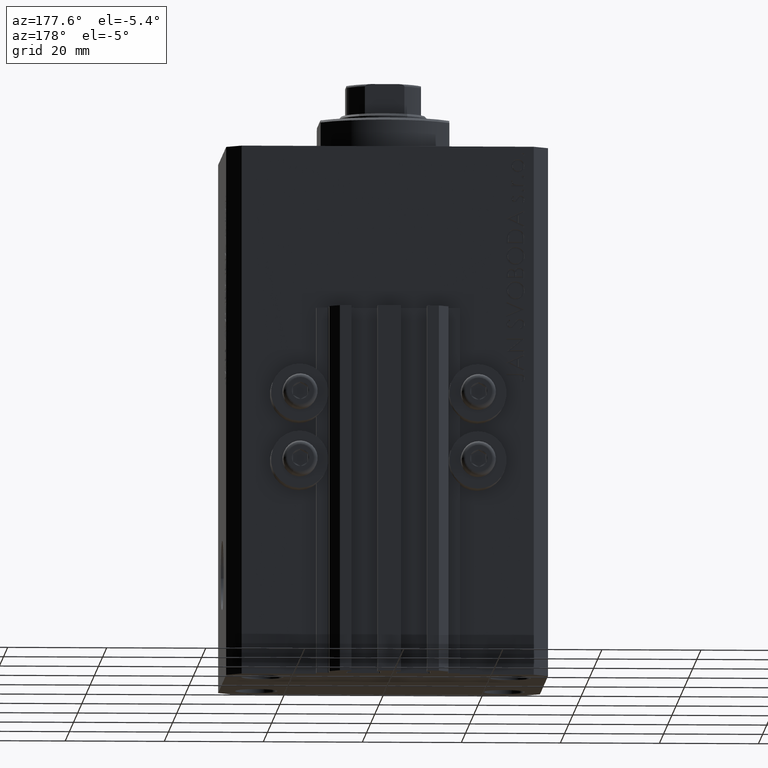
[diagram: clean part render]
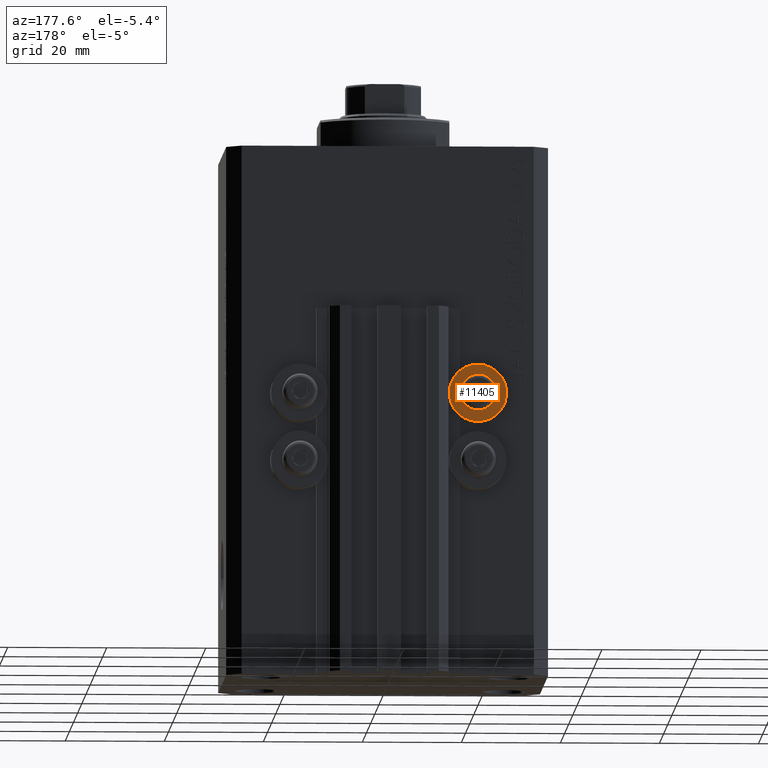
[diagram: same view with one face highlighted and labeled with its STEP entity id]
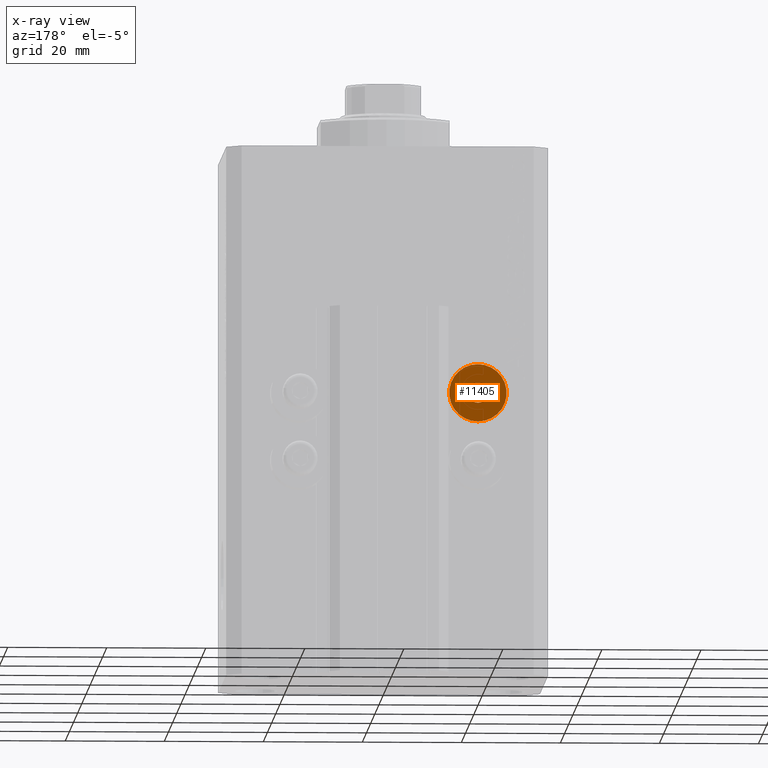
[diagram: x-ray of the same camera — body ghosted, the highlighted face saturated]
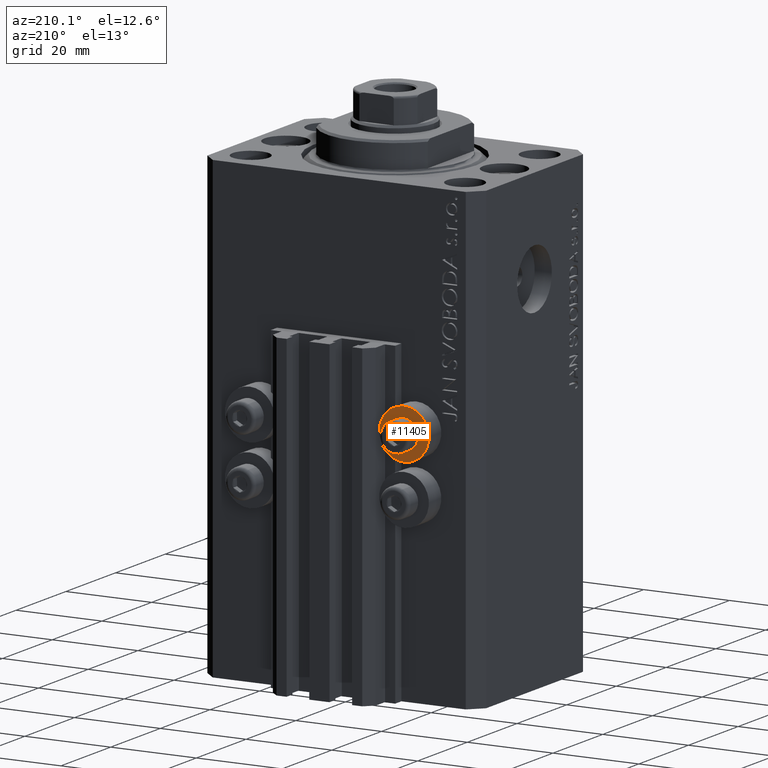
[diagram: same view with one face highlighted and labeled with its STEP entity id]
A machine part, auxiliary view. The second image highlights one B-rep face of the part: STEP entity #11405.
The next image is the same camera in x-ray: the body ghosted, the highlighted face saturated — about 0% of this face is hidden behind the body in this view.
A second angle (auxiliary view) of the same face is appended — the face is thin or edge-on in the first view.
In plain terms, the highlighted planar face has unit normal (0, -1, 0).
Its self-contained STEP definition (entity closure, byte-faithful):
#1298 = FACE_OUTER_BOUND ( 'NONE', #46923, .T. ) ;
#4878 = DIRECTION ( 'NONE',  ( 0.000000000000000000, -1.000000000000000000, 0.000000000000000000 ) ) ;
#9739 = VERTEX_POINT ( 'NONE', #35247 ) ;
#10584 = CARTESIAN_POINT ( 'NONE',  ( -18.00000000000000355, 27.49999999996051514, -44.60000000000000142 ) ) ;
#11405 = ADVANCED_FACE ( 'NONE', ( #33522, #1298 ), #29713, .F. ) ;
#16361 = CIRCLE ( 'NONE', #43069, 5.799999999999999822 ) ;
#16480 = DIRECTION ( 'NONE',  ( 0.000000000000000000, 1.000000000000000000, 0.000000000000000000 ) ) ;
#17511 = CARTESIAN_POINT ( 'NONE',  ( -18.00000000000000355, 27.49999999996051514, -50.39999999999999858 ) ) ;
#18618 = CARTESIAN_POINT ( 'NONE',  ( -18.00000000000000355, 27.49999999996051514, -56.20000000000000284 ) ) ;
#20084 = AXIS2_PLACEMENT_3D ( 'NONE', #27009, #16480, #23889 ) ;
#22117 = AXIS2_PLACEMENT_3D ( 'NONE', #30132, #30360, #26076 ) ;
#22777 = CARTESIAN_POINT ( 'NONE',  ( -12.20000000000000284, 27.49999999996051514, -50.39999999999999858 ) ) ;
#23160 = CIRCLE ( 'NONE', #20084, 2.000000000000001776 ) ;
#23166 = EDGE_CURVE ( 'NONE', #9739, #29542, #23160, .T. ) ;
#23879 = ORIENTED_EDGE ( 'NONE', *, *, #44279, .T. ) ;
#23889 = DIRECTION ( 'NONE',  ( 0.000000000000000000, 0.000000000000000000, 1.000000000000000000 ) ) ;
#24204 = DIRECTION ( 'NONE',  ( 0.000000000000000000, 1.000000000000000000, 0.000000000000000000 ) ) ;
#24516 = ORIENTED_EDGE ( 'NONE', *, *, #29731, .T. ) ;
#25891 = DIRECTION ( 'NONE',  ( 0.000000000000000000, -0.000000000000000000, -1.000000000000000000 ) ) ;
#26076 = DIRECTION ( 'NONE',  ( 0.000000000000000000, 0.000000000000000000, 1.000000000000000000 ) ) ;
#26672 = DIRECTION ( 'NONE',  ( -0.000000000000000000, 1.000000000000000000, -0.000000000000000000 ) ) ;
#27009 = CARTESIAN_POINT ( 'NONE',  ( -18.00000000000000355, 27.49999999996051514, -50.39999999999999858 ) ) ;
#29542 = VERTEX_POINT ( 'NONE', #38315 ) ;
#29693 = AXIS2_PLACEMENT_3D ( 'NONE', #17511, #24204, #46643 ) ;
#29713 = PLANE ( 'NONE',  #46443 ) ;
#29731 = EDGE_CURVE ( 'NONE', #42603, #41804, #16361, .T. ) ;
#30132 = CARTESIAN_POINT ( 'NONE',  ( -18.00000000000000355, 27.49999999996051514, -50.39999999999999858 ) ) ;
#30360 = DIRECTION ( 'NONE',  ( -0.000000000000000000, 1.000000000000000000, -0.000000000000000000 ) ) ;
#31278 = CIRCLE ( 'NONE', #22117, 5.799999999999999822 ) ;
#33522 = FACE_BOUND ( 'NONE', #41702, .T. ) ;
#35247 = CARTESIAN_POINT ( 'NONE',  ( -18.00000000000000355, 27.49999999996051514, -48.39999999999999858 ) ) ;
#36736 = ORIENTED_EDGE ( 'NONE', *, *, #42487, .F. ) ;
#38315 = CARTESIAN_POINT ( 'NONE',  ( -18.00000000000000355, 27.49999999996051514, -52.40000000000000568 ) ) ;
#38347 = DIRECTION ( 'NONE',  ( 0.000000000000000000, 0.000000000000000000, 1.000000000000000000 ) ) ;
#38818 = CIRCLE ( 'NONE', #29693, 2.000000000000001776 ) ;
#41470 = CARTESIAN_POINT ( 'NONE',  ( -18.00000000000000355, 27.49999999996051514, -50.39999999999999858 ) ) ;
#41702 = EDGE_LOOP ( 'NONE', ( #46488, #36736 ) ) ;
#41804 = VERTEX_POINT ( 'NONE', #18618 ) ;
#42487 = EDGE_CURVE ( 'NONE', #29542, #9739, #38818, .T. ) ;
#42603 = VERTEX_POINT ( 'NONE', #10584 ) ;
#43069 = AXIS2_PLACEMENT_3D ( 'NONE', #41470, #26672, #38347 ) ;
#44279 = EDGE_CURVE ( 'NONE', #41804, #42603, #31278, .T. ) ;
#46443 = AXIS2_PLACEMENT_3D ( 'NONE', #22777, #4878, #25891 ) ;
#46488 = ORIENTED_EDGE ( 'NONE', *, *, #23166, .F. ) ;
#46643 = DIRECTION ( 'NONE',  ( 0.000000000000000000, 0.000000000000000000, 1.000000000000000000 ) ) ;
#46923 = EDGE_LOOP ( 'NONE', ( #24516, #23879 ) ) ;